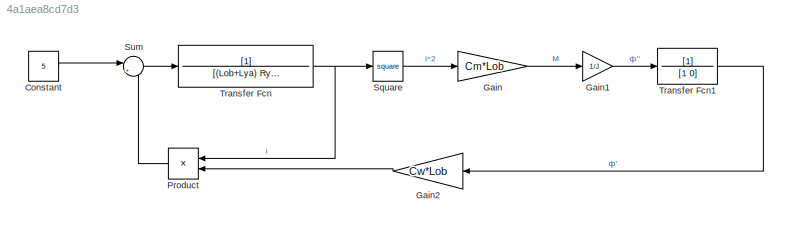
MODEL slx_4a1aea8cd7d3
KIND model
CONFIG AbsTol = auto
CONFIG EnableMultiTasking = off
CONFIG FixedStep = auto
CONFIG MaxStep = auto
CONFIG MinStep = auto
CONFIG RelTol = 1e-3
CONFIG SampleTimeConstraint = Unconstrained
CONFIG SolverName = VariableStepAuto
CONFIG StartTime = 0.0
CONFIG StopTime = 10.0
BLOCK [Constant] Constant
  Value = 5
BLOCK [Gain] Gain
  Gain = Cm*Lob
BLOCK [Gain] Gain1
  Gain = 1/J
BLOCK [Gain] Gain2
  Gain = Cw*Lob
  NameLocation = top
BLOCK [Product] Product
  NameLocation = top
BLOCK [Math] Square
  Operator = square
BLOCK [Sum] Sum
  Inputs = |+-
BLOCK [TransferFcn] Transfer Fcn
  Denominator = [(Lob+Lya) Rya]
BLOCK [TransferFcn] Transfer Fcn1
  Denominator = [1 0]
LINE Constant:1 -> Sum:1
LINE Gain1:1 -> Transfer Fcn1:1
LINE Gain2:1 -> Product:2
LINE Gain:1 -> Gain1:1
LINE Product:1 -> Sum:2
LINE Square:1 -> Gain:1
LINE Sum:1 -> Transfer Fcn:1
LINE Transfer Fcn1:1 -> Gain2:1
NET Transfer Fcn:1 -> Product:1, Square:1
note: NET lines group one-source signal fan-out (src -> all destinations, sorted); 1:1 wires keep LINE
